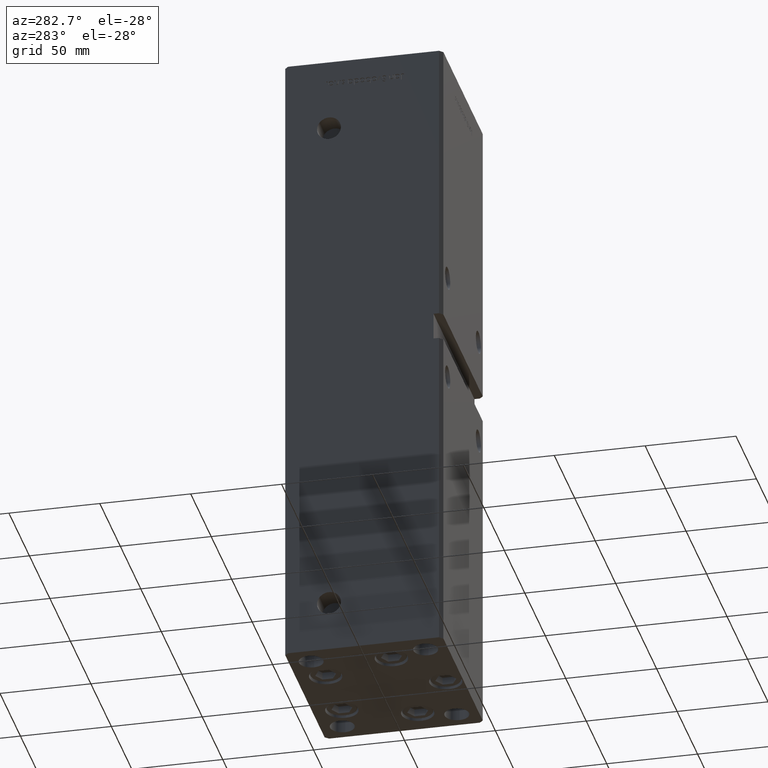
[diagram: clean part render]
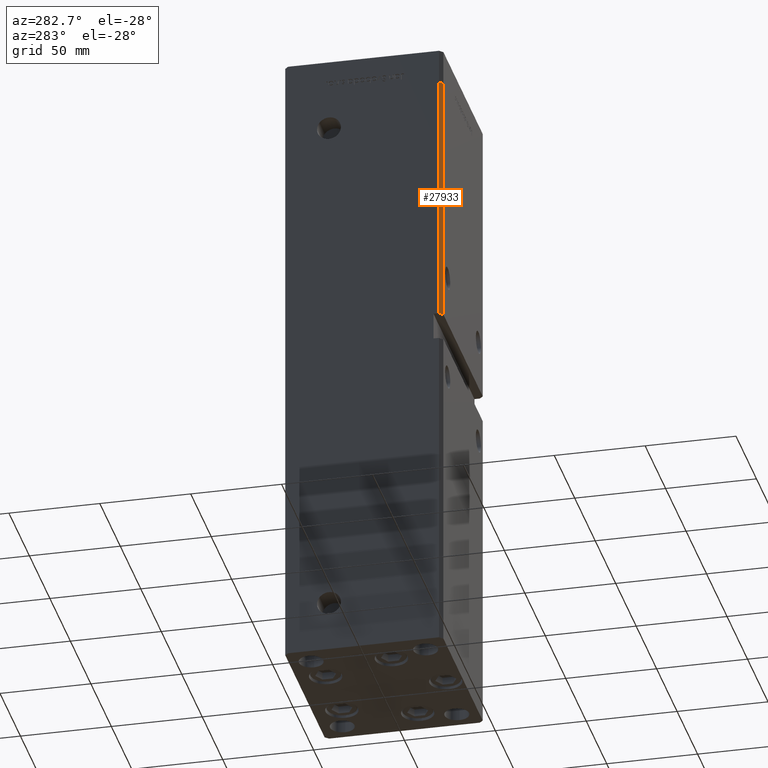
[diagram: same view with one face highlighted and labeled with its STEP entity id]
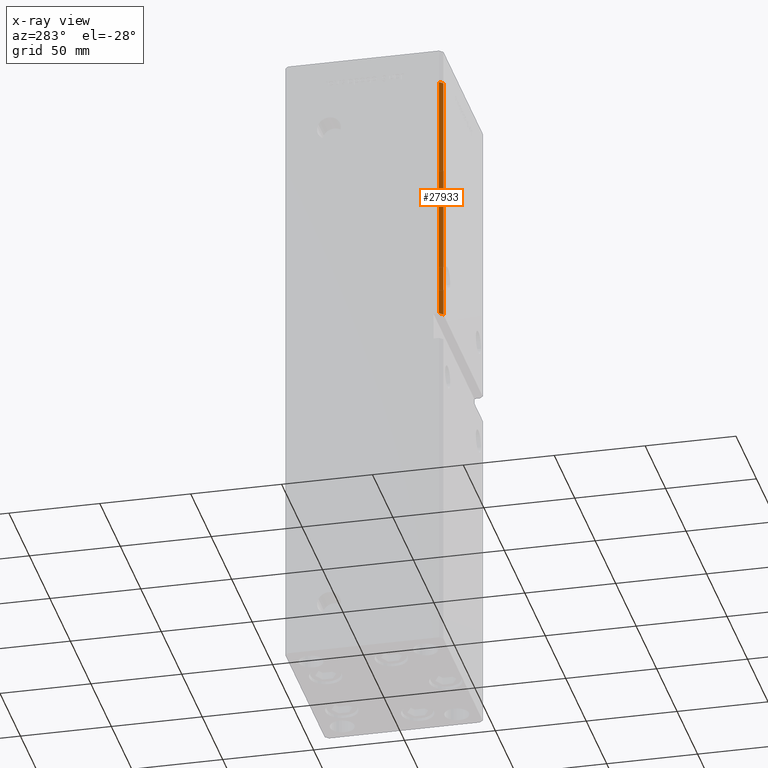
[diagram: x-ray of the same camera — body ghosted, the highlighted face saturated]
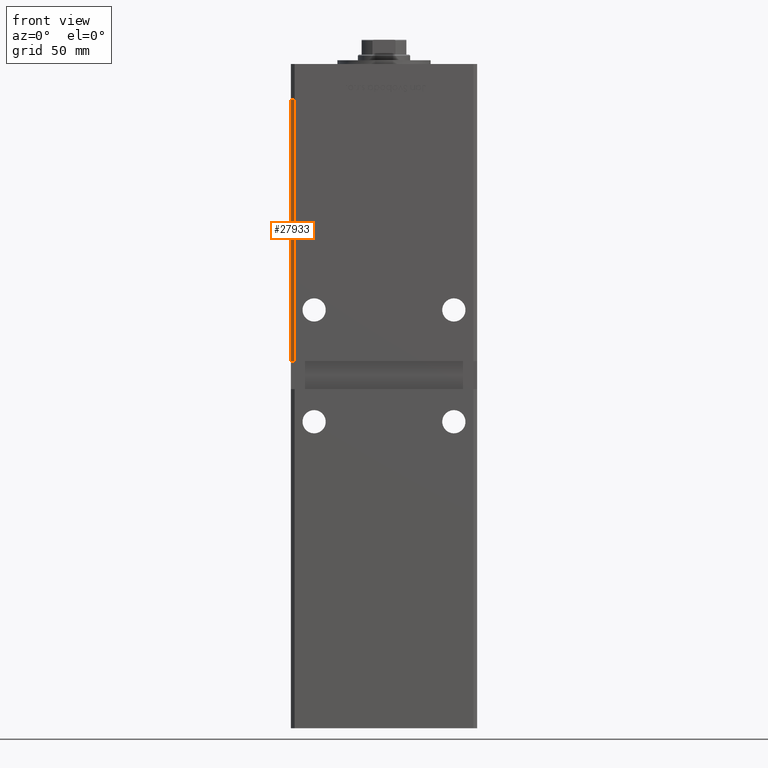
[diagram: same view with one face highlighted and labeled with its STEP entity id]
A machine part, auxiliary view. The second image highlights one B-rep face of the part: STEP entity #27933.
The next image is the same camera in x-ray: the body ghosted, the highlighted face saturated — about 0% of this face is hidden behind the body in this view.
A second angle (front view) of the same face is appended — the face is thin or edge-on in the first view.
In plain terms, the highlighted planar face has unit normal (0.7071, 0.7071, 0).
Its self-contained STEP definition (entity closure, byte-faithful):
#802 = VERTEX_POINT ( 'NONE', #39887 ) ;
#2480 = EDGE_CURVE ( 'NONE', #802, #35650, #17976, .T. ) ;
#3292 = PLANE ( 'NONE',  #49222 ) ;
#4096 = FACE_OUTER_BOUND ( 'NONE', #33351, .T. ) ;
#4969 = CARTESIAN_POINT ( 'NONE',  ( -49.99999999999998579, -41.49999999999999289, 318.5000000000000000 ) ) ;
#7361 = VECTOR ( 'NONE', #34874, 1000.000000000000114 ) ;
#7553 = DIRECTION ( 'NONE',  ( 0.7071067811865474617, -0.7071067811865474617, 0.000000000000000000 ) ) ;
#13764 = ORIENTED_EDGE ( 'NONE', *, *, #22746, .T. ) ;
#14839 = VERTEX_POINT ( 'NONE', #37237 ) ;
#15870 = VERTEX_POINT ( 'NONE', #40152 ) ;
#17976 = LINE ( 'NONE', #33544, #26376 ) ;
#19380 = LINE ( 'NONE', #27967, #33435 ) ;
#21745 = CARTESIAN_POINT ( 'NONE',  ( -49.99999999999998579, -41.49999999999999289, 318.5000000000000000 ) ) ;
#22746 = EDGE_CURVE ( 'NONE', #14839, #15870, #41758, .T. ) ;
#23978 = ORIENTED_EDGE ( 'NONE', *, *, #30797, .F. ) ;
#25020 = VECTOR ( 'NONE', #30724, 1000.000000000000000 ) ;
#26376 = VECTOR ( 'NONE', #30059, 1000.000000000000000 ) ;
#27743 = DIRECTION ( 'NONE',  ( 0.7071067811865475727, 0.7071067811865475727, -0.000000000000000000 ) ) ;
#27933 = ADVANCED_FACE ( 'NONE', ( #4096 ), #3292, .F. ) ;
#27967 = CARTESIAN_POINT ( 'NONE',  ( -49.99999999999998579, -41.49999999999999289, 178.0000000000000284 ) ) ;
#30059 = DIRECTION ( 'NONE',  ( -0.000000000000000000, -0.000000000000000000, -1.000000000000000000 ) ) ;
#30724 = DIRECTION ( 'NONE',  ( -0.000000000000000000, -0.000000000000000000, -1.000000000000000000 ) ) ;
#30797 = EDGE_CURVE ( 'NONE', #14839, #802, #44190, .T. ) ;
#32283 = CARTESIAN_POINT ( 'NONE',  ( -49.99999999999998579, -41.49999999999999289, 318.5000000000000000 ) ) ;
#33351 = EDGE_LOOP ( 'NONE', ( #13764, #34699, #38680, #23978 ) ) ;
#33435 = VECTOR ( 'NONE', #7553, 1000.000000000000114 ) ;
#33541 = EDGE_CURVE ( 'NONE', #15870, #35650, #19380, .T. ) ;
#33544 = CARTESIAN_POINT ( 'NONE',  ( -47.99999999999998579, -43.50000000000000000, 318.5000000000000000 ) ) ;
#34699 = ORIENTED_EDGE ( 'NONE', *, *, #33541, .T. ) ;
#34874 = DIRECTION ( 'NONE',  ( 0.7071067811865474617, -0.7071067811865474617, 0.000000000000000000 ) ) ;
#35650 = VERTEX_POINT ( 'NONE', #42566 ) ;
#36841 = DIRECTION ( 'NONE',  ( -0.7071067811865474617, 0.7071067811865474617, 0.000000000000000000 ) ) ;
#37237 = CARTESIAN_POINT ( 'NONE',  ( -49.99999999999998579, -41.49999999999999289, 318.5000000000000000 ) ) ;
#38680 = ORIENTED_EDGE ( 'NONE', *, *, #2480, .F. ) ;
#39887 = CARTESIAN_POINT ( 'NONE',  ( -47.99999999999998579, -43.50000000000000000, 318.5000000000000000 ) ) ;
#40152 = CARTESIAN_POINT ( 'NONE',  ( -49.99999999999997868, -41.50000000000000000, 178.0000000000000284 ) ) ;
#41758 = LINE ( 'NONE', #4969, #25020 ) ;
#42566 = CARTESIAN_POINT ( 'NONE',  ( -47.99999999999998579, -43.50000000000000000, 178.0000000000000284 ) ) ;
#44190 = LINE ( 'NONE', #21745, #7361 ) ;
#49222 = AXIS2_PLACEMENT_3D ( 'NONE', #32283, #27743, #36841 ) ;